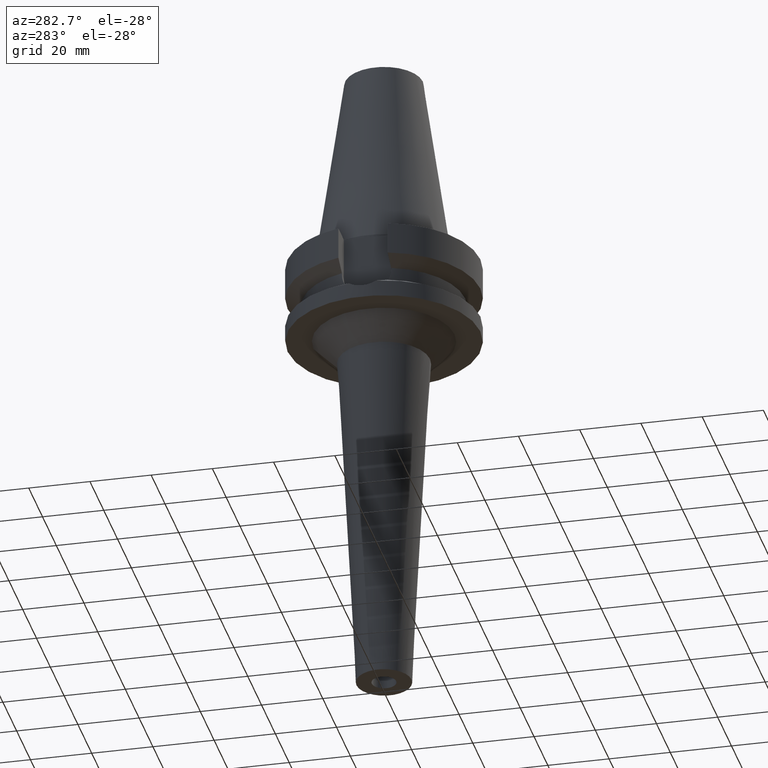
[diagram: clean part render]
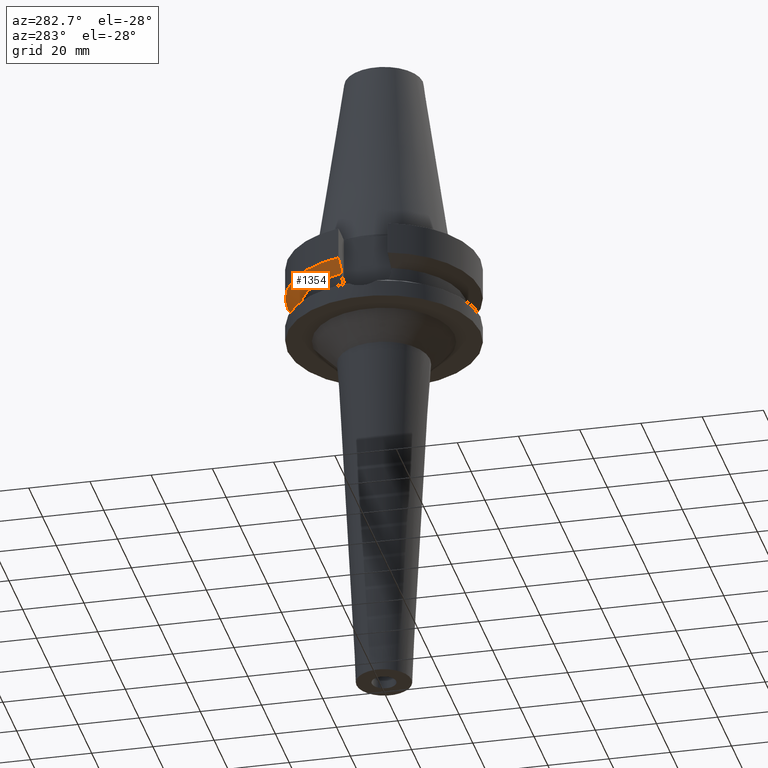
[diagram: same view with one face highlighted and labeled with its STEP entity id]
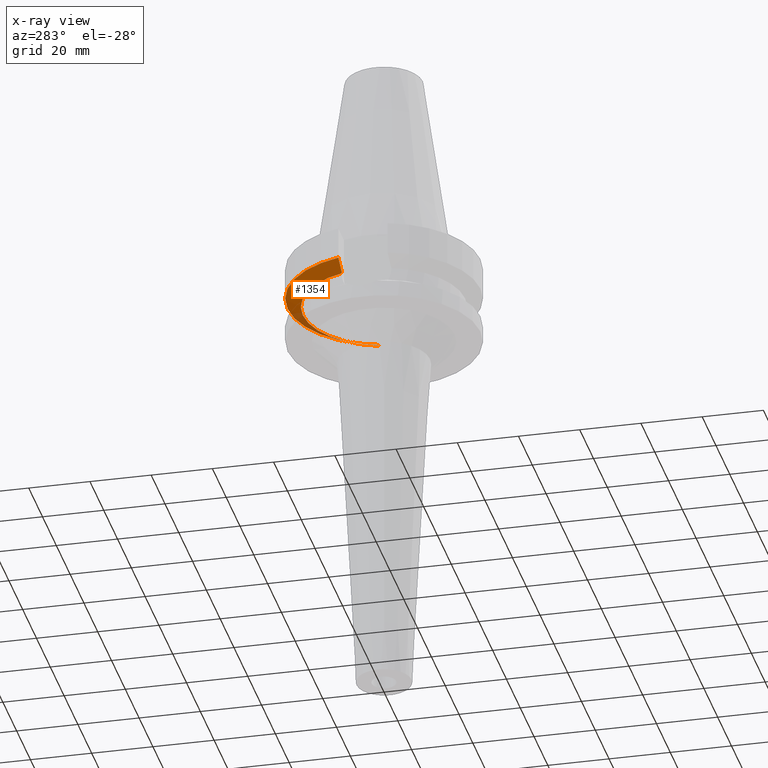
[diagram: x-ray of the same camera — body ghosted, the highlighted face saturated]
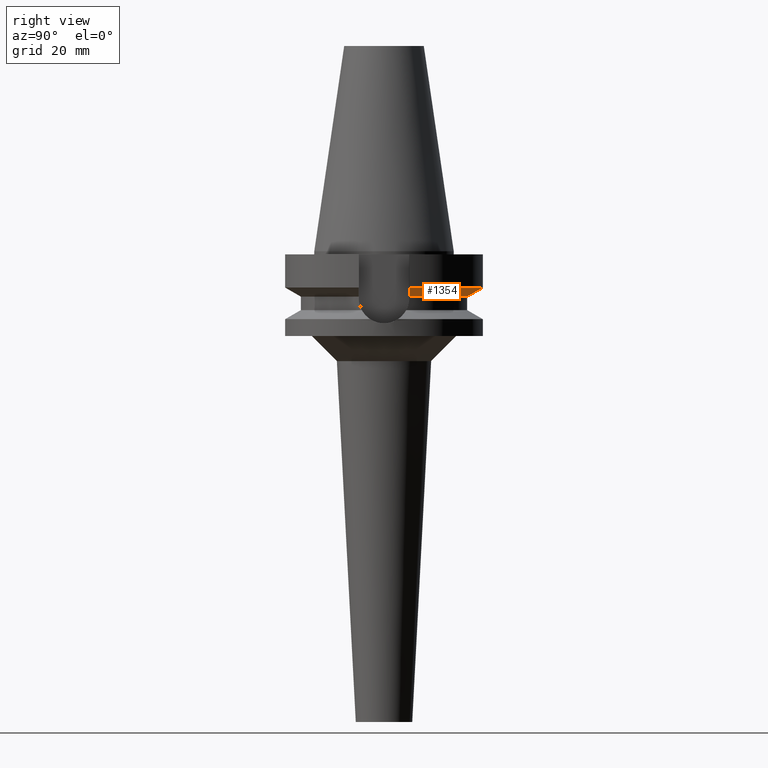
[diagram: same view with one face highlighted and labeled with its STEP entity id]
A machine part, auxiliary view. The second image highlights one B-rep face of the part: STEP entity #1354.
The next image is the same camera in x-ray: the body ghosted, the highlighted face saturated — about 14% of this face is hidden behind the body in this view.
A second angle (right view) of the same face is appended — the face is thin or edge-on in the first view.
In plain terms, the highlighted conical surface has half-angle 60 deg.
Its self-contained STEP definition (entity closure, byte-faithful):
#344=CARTESIAN_POINT('',(3.045402291366E1,8.049999277900E0,-1.156551215647E1));
#345=CARTESIAN_POINT('',(2.987645774282E1,8.049999277900E0,-1.188789690684E1));
#346=CARTESIAN_POINT('',(2.872091200702E1,8.049999725831E0,-1.253193852712E1));
#347=CARTESIAN_POINT('',(2.698538663939E1,8.050002042741E0,-1.349404339605E1));
#348=CARTESIAN_POINT('',(2.582730530082E1,8.049995416384E0,-1.413348340569E1));
#349=CARTESIAN_POINT('',(2.524772413102E1,8.049995416384E0,-1.445229202342E1));
#388=CARTESIAN_POINT('',(-2.524772216375E1,8.050001586471E0,-1.445224487658E1));
#389=CARTESIAN_POINT('',(-2.582727361540E1,8.050001586471E0,-1.413345268035E1));
#390=CARTESIAN_POINT('',(-2.698547393896E1,8.049999812109E0,-1.349419204145E1));
#391=CARTESIAN_POINT('',(-2.872100162077E1,8.049998277913E0,-1.253209181881E1));
#392=CARTESIAN_POINT('',(-2.987642831175E1,8.050004143464E0,-1.188786874955E1));
#393=CARTESIAN_POINT('',(-3.045402162753E1,8.050004143464E0,-1.156546833011E1));
#398=CARTESIAN_POINT('',(0.E0,1.065333950388E-14,-1.445225699861E1));
#399=DIRECTION('',(0.E0,0.E0,-1.E0));
#400=DIRECTION('',(-9.527442516822E-1,3.037735849057E-1,0.E0));
#401=AXIS2_PLACEMENT_3D('',#398,#399,#400);
#406=CARTESIAN_POINT('',(0.E0,1.065333950388E-14,-1.445225699861E1));
#407=DIRECTION('',(0.E0,0.E0,-1.E0));
#408=DIRECTION('',(0.E0,1.E0,0.E0));
#409=AXIS2_PLACEMENT_3D('',#406,#407,#408);
#414=CARTESIAN_POINT('',(0.E0,1.065333950388E-14,-1.156550565267E1));
#415=DIRECTION('',(0.E0,0.E0,1.E0));
#416=DIRECTION('',(9.667943721520E-1,2.555555555555E-1,0.E0));
#417=AXIS2_PLACEMENT_3D('',#414,#415,#416);
#422=CARTESIAN_POINT('',(0.E0,1.065333950388E-14,-1.156550565267E1));
#423=DIRECTION('',(0.E0,0.E0,1.E0));
#424=DIRECTION('',(0.E0,1.E0,0.E0));
#425=AXIS2_PLACEMENT_3D('',#422,#423,#424);
#1009=CARTESIAN_POINT('',(-2.524772216375E1,8.050001586471E0,
-1.445224487658E1));
#1010=VERTEX_POINT('',#1009);
#1011=CARTESIAN_POINT('',(2.524772413102E1,8.049995416384E0,-1.445229202342E1));
#1012=VERTEX_POINT('',#1011);
#1013=CARTESIAN_POINT('',(0.E0,2.65E1,-1.445225699861E1));
#1014=VERTEX_POINT('',#1013);
#1045=VERTEX_POINT('',#393);
#1050=VERTEX_POINT('',#344);
#1051=CARTESIAN_POINT('',(0.E0,3.15E1,-1.156550565267E1));
#1052=VERTEX_POINT('',#1051);
#1339=CARTESIAN_POINT('',(0.E0,1.065333950388E-14,-1.300888132564E1));
#1340=DIRECTION('',(0.E0,0.E0,1.E0));
#1341=DIRECTION('',(0.E0,1.E0,0.E0));
#1342=AXIS2_PLACEMENT_3D('',#1339,#1340,#1341);
#1343=CONICAL_SURFACE('',#1342,2.9E1,6.E1);
#1344=ORIENTED_EDGE('',*,*,#1328,.F.);
#1345=ORIENTED_EDGE('',*,*,#1317,.T.);
#1346=ORIENTED_EDGE('',*,*,#1315,.T.);
#1347=ORIENTED_EDGE('',*,*,#1294,.F.);
#1349=ORIENTED_EDGE('',*,*,#1348,.T.);
#1351=ORIENTED_EDGE('',*,*,#1350,.T.);
#1352=EDGE_LOOP('',(#1344,#1345,#1346,#1347,#1349,#1351));
#1353=FACE_OUTER_BOUND('',#1352,.F.);
#350=B_SPLINE_CURVE_WITH_KNOTS('',3,(#344,#345,#346,#347,#348,#349),
.UNSPECIFIED.,.F.,.F.,(4,1,1,4),(0.E0,3.333333333333E-1,6.666666666667E-1,1.E0),
.UNSPECIFIED.);
#394=B_SPLINE_CURVE_WITH_KNOTS('',3,(#388,#389,#390,#391,#392,#393),
.UNSPECIFIED.,.F.,.F.,(4,1,1,4),(0.E0,3.333333333333E-1,6.666666666667E-1,1.E0),
.UNSPECIFIED.);
#402=CIRCLE('',#401,2.65E1);
#410=CIRCLE('',#409,2.65E1);
#418=CIRCLE('',#417,3.15E1);
#426=CIRCLE('',#425,3.15E1);
#1294=EDGE_CURVE('',#1050,#1012,#350,.T.);
#1315=EDGE_CURVE('',#1014,#1012,#410,.T.);
#1317=EDGE_CURVE('',#1010,#1014,#402,.T.);
#1328=EDGE_CURVE('',#1010,#1045,#394,.T.);
#1348=EDGE_CURVE('',#1050,#1052,#418,.T.);
#1350=EDGE_CURVE('',#1052,#1045,#426,.T.);
#1354=ADVANCED_FACE('',(#1353),#1343,.T.);